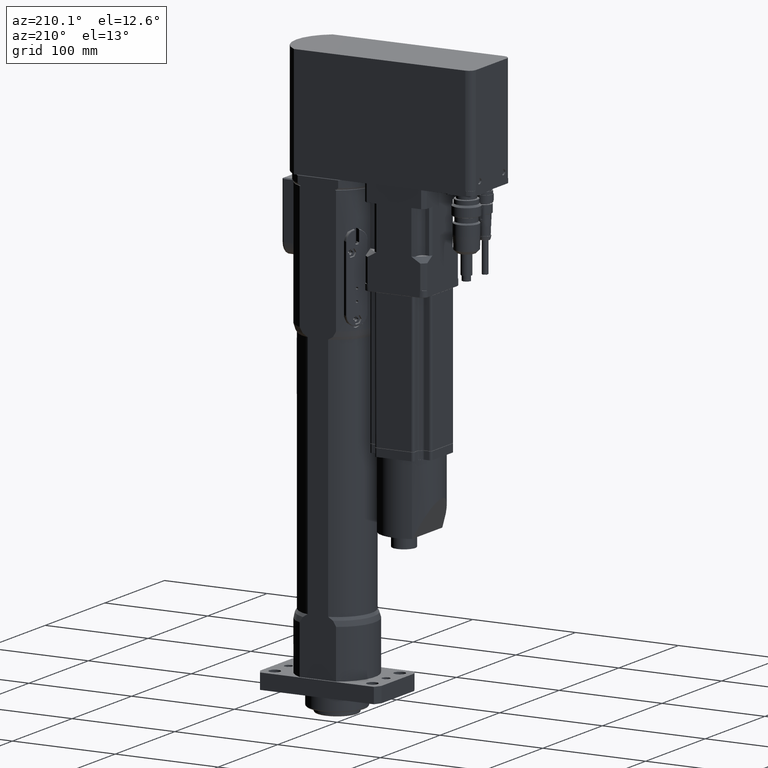
[diagram: clean part render]
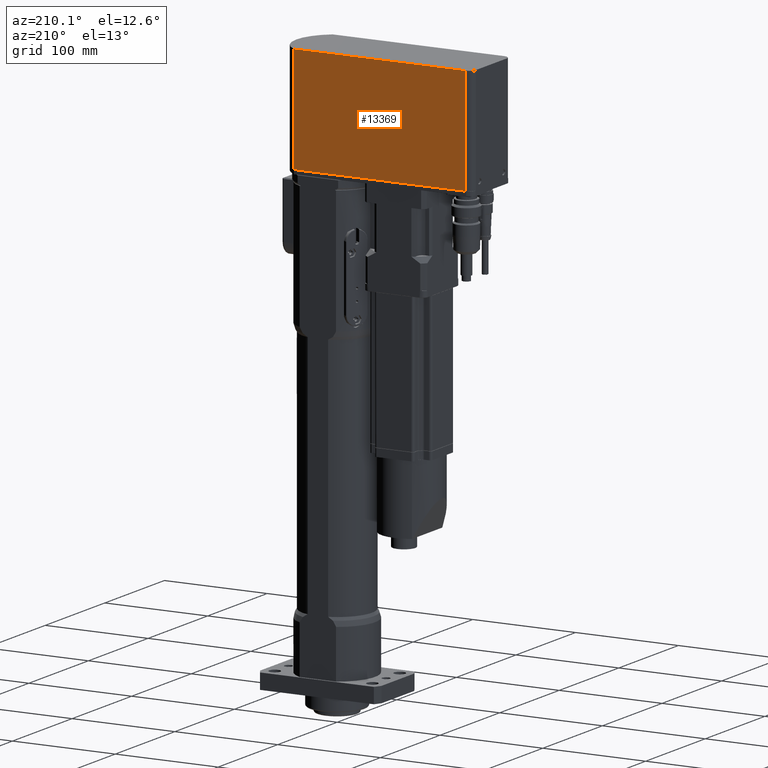
[diagram: same view with one face highlighted and labeled with its STEP entity id]
A machine part, auxiliary view. The second image highlights one B-rep face of the part: STEP entity #13369.
In plain terms, the highlighted planar face has unit normal (-0, 1, 0).
Its self-contained STEP definition (entity closure, byte-faithful):
#855=LINE('',#24019,#1790);
#1050=LINE('',#25149,#1985);
#1053=LINE('',#25160,#1988);
#1054=LINE('',#25161,#1989);
#1790=VECTOR('',#17507,166.718447632722);
#1985=VECTOR('',#18282,166.718447632722);
#1988=VECTOR('',#18293,104.);
#1989=VECTOR('',#18294,104.);
#2606=PLANE('',#14739);
#3524=FACE_OUTER_BOUND('',#4466,.T.);
#4466=EDGE_LOOP('',(#11245,#11246,#11247,#11248));
#6026=VERTEX_POINT('',#24006);
#6031=VERTEX_POINT('',#24018);
#6272=VERTEX_POINT('',#25147);
#6273=VERTEX_POINT('',#25148);
#7591=EDGE_CURVE('',#6031,#6026,#855,.T.);
#7963=EDGE_CURVE('',#6272,#6273,#1050,.T.);
#7969=EDGE_CURVE('',#6026,#6273,#1053,.T.);
#7970=EDGE_CURVE('',#6031,#6272,#1054,.T.);
#11245=ORIENTED_EDGE('',*,*,#7591,.T.);
#11246=ORIENTED_EDGE('',*,*,#7969,.T.);
#11247=ORIENTED_EDGE('',*,*,#7963,.F.);
#11248=ORIENTED_EDGE('',*,*,#7970,.F.);
#13369=ADVANCED_FACE('',(#3524),#2606,.T.);
#14739=AXIS2_PLACEMENT_3D('',#25159,#18291,#18292);
#17507=DIRECTION('',(-1.,0.,0.));
#18282=DIRECTION('',(-1.,-2.70123244266842E-16,0.));
#18291=DIRECTION('center_axis',(-2.70123244266842E-16,1.,0.));
#18292=DIRECTION('ref_axis',(-1.,0.,0.));
#18293=DIRECTION('',(0.,0.,1.));
#18294=DIRECTION('',(0.,0.,1.));
#24006=CARTESIAN_POINT('',(-143.4,32.4999999999999,466.));
#24018=CARTESIAN_POINT('',(23.318447632722,32.5,466.));
#24019=CARTESIAN_POINT('',(40.,32.5,466.));
#25147=CARTESIAN_POINT('',(23.318447632722,32.5,570.));
#25148=CARTESIAN_POINT('',(-143.4,32.4999999999999,570.));
#25149=CARTESIAN_POINT('',(23.318447632722,32.5,570.));
#25159=CARTESIAN_POINT('Origin',(23.318447632722,32.5,466.));
#25160=CARTESIAN_POINT('',(-143.4,32.4999999999999,466.));
#25161=CARTESIAN_POINT('',(23.318447632722,32.5,466.));